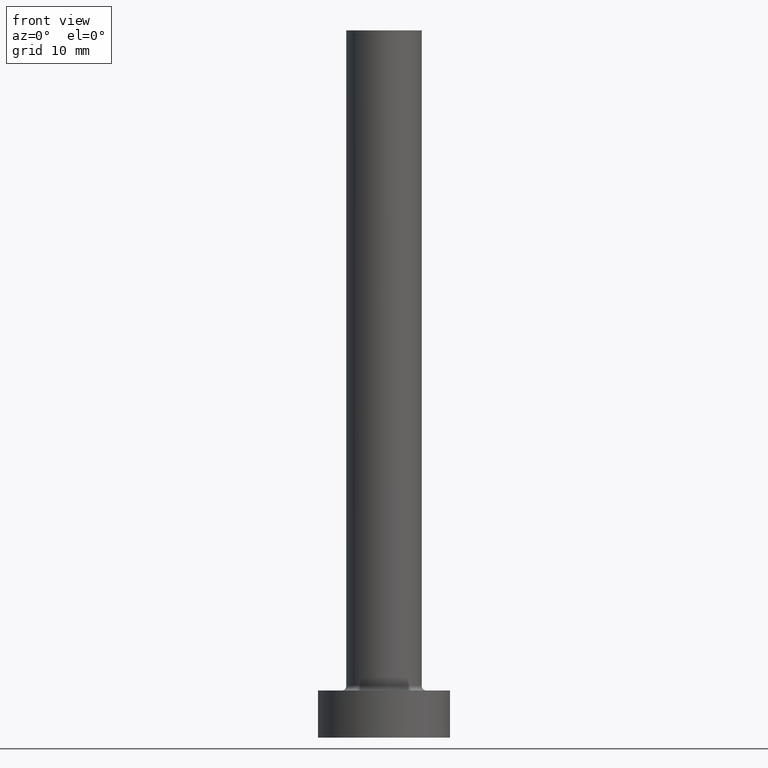
[diagram: clean part render]
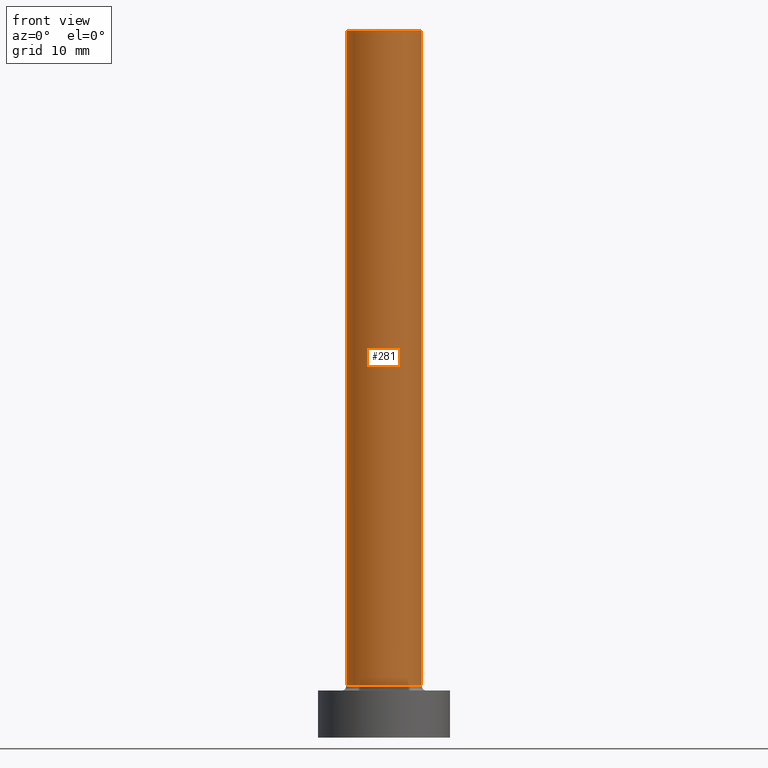
[diagram: same view with one face highlighted and labeled with its STEP entity id]
A machine part, front view. The second image highlights one B-rep face of the part: STEP entity #281.
In plain terms, the highlighted cylindrical surface (partial cylindrical patch) has radius 4 mm, axis along (-0, -0, -1).
Its self-contained STEP definition (entity closure, byte-faithful):
#2 = CARTESIAN_POINT ( 'NONE',  ( 4.000000000000000000, 4.898587196589412829E-16, 75.00000000000001421 ) ) ;
#6 = VECTOR ( 'NONE', #14, 1000.000000000000000 ) ;
#14 = DIRECTION ( 'NONE',  ( -0.000000000000000000, -0.000000000000000000, -1.000000000000000000 ) ) ;
#20 = ORIENTED_EDGE ( 'NONE', *, *, #270, .F. ) ;
#31 = EDGE_CURVE ( 'NONE', #287, #146, #232, .T. ) ;
#32 = CARTESIAN_POINT ( 'NONE',  ( 0.000000000000000000, 0.000000000000000000, 75.00000000000001421 ) ) ;
#36 = CARTESIAN_POINT ( 'NONE',  ( 4.000000000000000000, 4.898587196589412829E-16, 5.500000000000005329 ) ) ;
#41 = DIRECTION ( 'NONE',  ( 1.000000000000000000, 0.000000000000000000, 0.000000000000000000 ) ) ;
#44 = CIRCLE ( 'NONE', #223, 4.000000000000000000 ) ;
#81 = AXIS2_PLACEMENT_3D ( 'NONE', #32, #404, #299 ) ;
#108 = EDGE_CURVE ( 'NONE', #146, #239, #44, .T. ) ;
#122 = FACE_OUTER_BOUND ( 'NONE', #422, .T. ) ;
#146 = VERTEX_POINT ( 'NONE', #290 ) ;
#156 = DIRECTION ( 'NONE',  ( 0.000000000000000000, 0.000000000000000000, 1.000000000000000000 ) ) ;
#189 = AXIS2_PLACEMENT_3D ( 'NONE', #373, #156, #371 ) ;
#223 = AXIS2_PLACEMENT_3D ( 'NONE', #372, #368, #41 ) ;
#226 = VERTEX_POINT ( 'NONE', #2 ) ;
#232 = LINE ( 'NONE', #412, #6 ) ;
#237 = CIRCLE ( 'NONE', #189, 4.000000000000000000 ) ;
#239 = VERTEX_POINT ( 'NONE', #36 ) ;
#254 = EDGE_CURVE ( 'NONE', #226, #239, #359, .T. ) ;
#264 = CYLINDRICAL_SURFACE ( 'NONE', #81, 4.000000000000000000 ) ;
#270 = EDGE_CURVE ( 'NONE', #287, #226, #237, .T. ) ;
#276 = ORIENTED_EDGE ( 'NONE', *, *, #31, .T. ) ;
#281 = ADVANCED_FACE ( 'NONE', ( #122 ), #264, .T. ) ;
#287 = VERTEX_POINT ( 'NONE', #309 ) ;
#290 = CARTESIAN_POINT ( 'NONE',  ( -4.000000000000000000, 0.000000000000000000, 5.500000000000005329 ) ) ;
#299 = DIRECTION ( 'NONE',  ( -1.000000000000000000, 0.000000000000000000, 0.000000000000000000 ) ) ;
#309 = CARTESIAN_POINT ( 'NONE',  ( -4.000000000000000000, 0.000000000000000000, 75.00000000000001421 ) ) ;
#321 = ORIENTED_EDGE ( 'NONE', *, *, #254, .F. ) ;
#335 = DIRECTION ( 'NONE',  ( -0.000000000000000000, -0.000000000000000000, -1.000000000000000000 ) ) ;
#359 = LINE ( 'NONE', #400, #406 ) ;
#368 = DIRECTION ( 'NONE',  ( 0.000000000000000000, 0.000000000000000000, 1.000000000000000000 ) ) ;
#371 = DIRECTION ( 'NONE',  ( 1.000000000000000000, 0.000000000000000000, 0.000000000000000000 ) ) ;
#372 = CARTESIAN_POINT ( 'NONE',  ( 0.000000000000000000, 0.000000000000000000, 5.500000000000005329 ) ) ;
#373 = CARTESIAN_POINT ( 'NONE',  ( 0.000000000000000000, 0.000000000000000000, 75.00000000000001421 ) ) ;
#400 = CARTESIAN_POINT ( 'NONE',  ( 4.000000000000000000, 4.898587196589412829E-16, 75.00000000000001421 ) ) ;
#404 = DIRECTION ( 'NONE',  ( -0.000000000000000000, -0.000000000000000000, -1.000000000000000000 ) ) ;
#406 = VECTOR ( 'NONE', #335, 1000.000000000000000 ) ;
#412 = CARTESIAN_POINT ( 'NONE',  ( -4.000000000000000000, 0.000000000000000000, 75.00000000000001421 ) ) ;
#422 = EDGE_LOOP ( 'NONE', ( #321, #20, #276, #450 ) ) ;
#450 = ORIENTED_EDGE ( 'NONE', *, *, #108, .T. ) ;